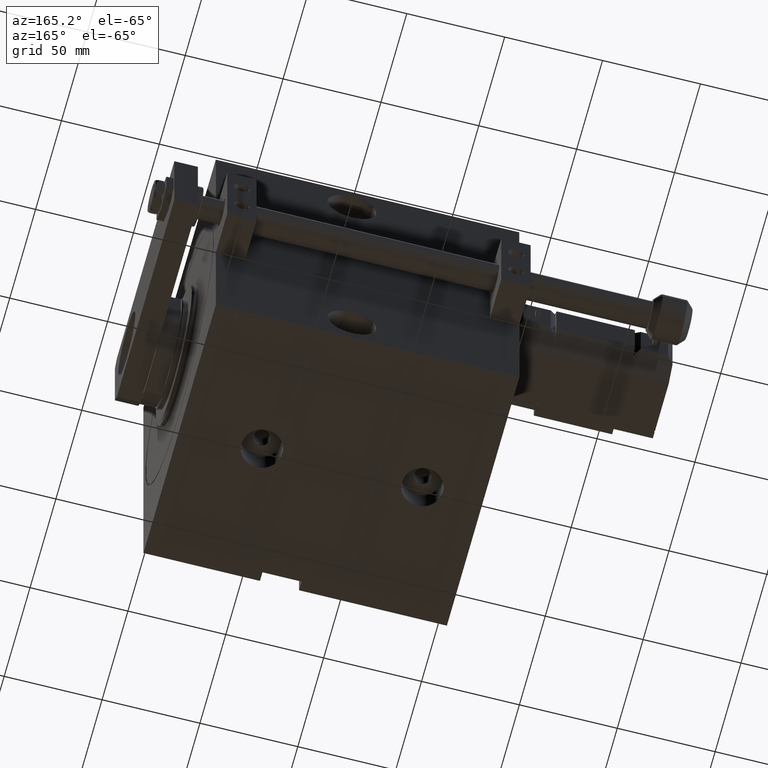
[diagram: clean part render]
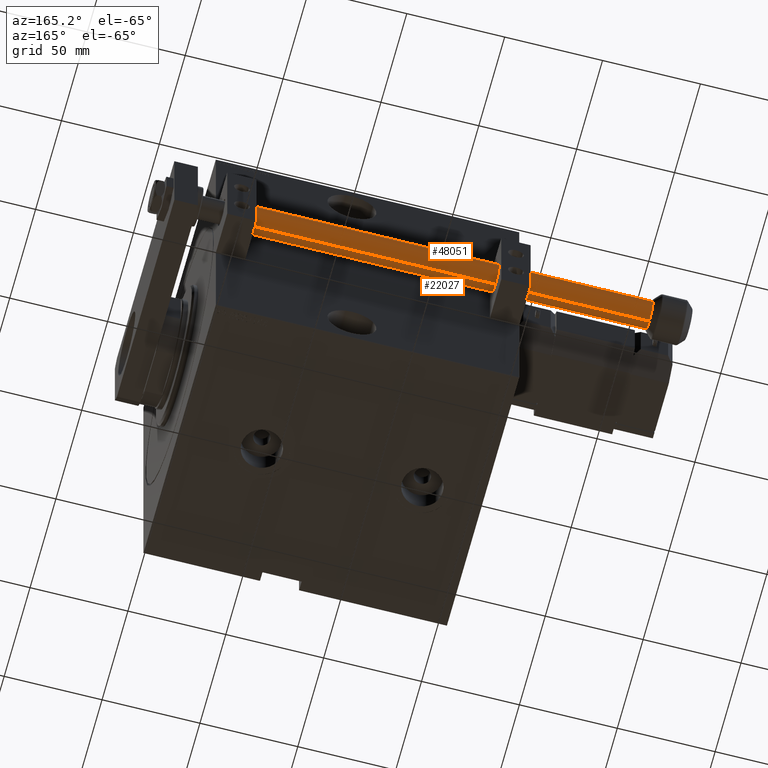
[diagram: same view with one multi-face feature highlighted, each face labeled with its STEP entity id]
A machine part, auxiliary view. The highlighted faces form ONE feature: a constant-radius fillet chain: 2 tangent blend faces with common blend radius 7 mm. The faces share edges in the B-rep.
Their STEP definitions:
[1] entity #48051 (Cylinder):
#203 = EDGE_CURVE ( 'NONE', #5867, #39175, #46766, .T. ) ;
#381 = CARTESIAN_POINT ( 'NONE',  ( 0.000000000000000000, 0.000000000000000000, 235.0000000000000000 ) ) ;
#866 = CIRCLE ( 'NONE', #7303, 7.000000000000000000 ) ;
#1077 = CARTESIAN_POINT ( 'NONE',  ( -7.000000000000000000, 0.000000000000000000, 235.0000000000000000 ) ) ;
#1748 = DIRECTION ( 'NONE',  ( 1.000000000000000000, 0.000000000000000000, 0.000000000000000000 ) ) ;
#5531 = CARTESIAN_POINT ( 'NONE',  ( 0.000000000000000000, 0.000000000000000000, 234.0000000000001421 ) ) ;
#5867 = VERTEX_POINT ( 'NONE', #15515 ) ;
#6042 = VECTOR ( 'NONE', #12743, 1000.000000000000000 ) ;
#6920 = ORIENTED_EDGE ( 'NONE', *, *, #31447, .T. ) ;
#7068 = CARTESIAN_POINT ( 'NONE',  ( -7.000000000000000000, 0.000000000000000000, 2.000000000000057288 ) ) ;
#7303 = AXIS2_PLACEMENT_3D ( 'NONE', #5531, #36351, #1748 ) ;
#8732 = ORIENTED_EDGE ( 'NONE', *, *, #38499, .T. ) ;
#9069 = EDGE_LOOP ( 'NONE', ( #24436, #12231, #8732, #19312, #13998, #6920 ) ) ;
#12231 = ORIENTED_EDGE ( 'NONE', *, *, #27559, .T. ) ;
#12743 = DIRECTION ( 'NONE',  ( -0.000000000000000000, -0.000000000000000000, -1.000000000000000000 ) ) ;
#12935 = AXIS2_PLACEMENT_3D ( 'NONE', #21439, #35682, #35416 ) ;
#13238 = EDGE_CURVE ( 'NONE', #34074, #37008, #866, .T. ) ;
#13998 = ORIENTED_EDGE ( 'NONE', *, *, #13238, .T. ) ;
#15515 = CARTESIAN_POINT ( 'NONE',  ( 0.4999999999999882871, 6.982120021884472116, 234.0000000000001421 ) ) ;
#16023 = FACE_OUTER_BOUND ( 'NONE', #9069, .T. ) ;
#16106 = AXIS2_PLACEMENT_3D ( 'NONE', #22071, #18290, #48371 ) ;
#18290 = DIRECTION ( 'NONE',  ( 0.000000000000000000, 0.000000000000000000, -1.000000000000000000 ) ) ;
#19312 = ORIENTED_EDGE ( 'NONE', *, *, #38505, .F. ) ;
#19387 = VECTOR ( 'NONE', #28791, 1000.000000000000000 ) ;
#19613 = AXIS2_PLACEMENT_3D ( 'NONE', #381, #46860, #34235 ) ;
#20080 = CARTESIAN_POINT ( 'NONE',  ( 7.000000000000000000, 8.572527594031471218E-16, 235.0000000000000000 ) ) ;
#20575 = AXIS2_PLACEMENT_3D ( 'NONE', #38080, #22916, #38326 ) ;
#21439 = CARTESIAN_POINT ( 'NONE',  ( 0.000000000000000000, 0.000000000000000000, 2.000000000000057288 ) ) ;
#22071 = CARTESIAN_POINT ( 'NONE',  ( 0.000000000000000000, 0.000000000000000000, 234.0000000000001421 ) ) ;
#22916 = DIRECTION ( 'NONE',  ( 0.000000000000000000, 0.000000000000000000, -1.000000000000000000 ) ) ;
#23436 = CIRCLE ( 'NONE', #12935, 7.000000000000000000 ) ;
#24436 = ORIENTED_EDGE ( 'NONE', *, *, #203, .T. ) ;
#24614 = CIRCLE ( 'NONE', #20575, 7.000000000000000000 ) ;
#27559 = EDGE_CURVE ( 'NONE', #39175, #43358, #47121, .T. ) ;
#28791 = DIRECTION ( 'NONE',  ( -0.000000000000000000, -0.000000000000000000, -1.000000000000000000 ) ) ;
#31446 = CYLINDRICAL_SURFACE ( 'NONE', #19613, 7.000000000000000000 ) ;
#31447 = EDGE_CURVE ( 'NONE', #37008, #5867, #24614, .T. ) ;
#31827 = CARTESIAN_POINT ( 'NONE',  ( -0.4999999999999992784, 6.982120021884637318, 234.0000000000000000 ) ) ;
#31960 = CARTESIAN_POINT ( 'NONE',  ( 7.000000000000000000, 8.572527594031471218E-16, 234.0000000000001421 ) ) ;
#32332 = VERTEX_POINT ( 'NONE', #7068 ) ;
#34074 = VERTEX_POINT ( 'NONE', #38231 ) ;
#34235 = DIRECTION ( 'NONE',  ( -1.000000000000000000, 0.000000000000000000, 0.000000000000000000 ) ) ;
#35416 = DIRECTION ( 'NONE',  ( 1.000000000000000000, 0.000000000000000000, 0.000000000000000000 ) ) ;
#35682 = DIRECTION ( 'NONE',  ( -0.000000000000000000, -0.000000000000000000, 1.000000000000000000 ) ) ;
#36351 = DIRECTION ( 'NONE',  ( 0.000000000000000000, 0.000000000000000000, -1.000000000000000000 ) ) ;
#37008 = VERTEX_POINT ( 'NONE', #31827 ) ;
#38080 = CARTESIAN_POINT ( 'NONE',  ( 0.000000000000000000, 0.000000000000000000, 234.0000000000001421 ) ) ;
#38231 = CARTESIAN_POINT ( 'NONE',  ( -7.000000000000000000, 0.000000000000000000, 234.0000000000001421 ) ) ;
#38326 = DIRECTION ( 'NONE',  ( 1.000000000000000000, 0.000000000000000000, 0.000000000000000000 ) ) ;
#38499 = EDGE_CURVE ( 'NONE', #43358, #32332, #23436, .T. ) ;
#38505 = EDGE_CURVE ( 'NONE', #34074, #32332, #47986, .T. ) ;
#39175 = VERTEX_POINT ( 'NONE', #31960 ) ;
#43358 = VERTEX_POINT ( 'NONE', #43474 ) ;
#43474 = CARTESIAN_POINT ( 'NONE',  ( 7.000000000000000000, 8.572527594031471218E-16, 2.000000000000057288 ) ) ;
#46766 = CIRCLE ( 'NONE', #16106, 7.000000000000000000 ) ;
#46860 = DIRECTION ( 'NONE',  ( -0.000000000000000000, -0.000000000000000000, -1.000000000000000000 ) ) ;
#47121 = LINE ( 'NONE', #20080, #6042 ) ;
#47986 = LINE ( 'NONE', #1077, #19387 ) ;
#48051 = ADVANCED_FACE ( 'NONE', ( #16023 ), #31446, .T. ) ;
#48371 = DIRECTION ( 'NONE',  ( 1.000000000000000000, -8.881784197001252323E-16, 0.000000000000000000 ) ) ;
[2] entity #22027 (Cylinder):
#481 = EDGE_CURVE ( 'NONE', #16633, #34074, #14504, .T. ) ;
#941 = EDGE_CURVE ( 'NONE', #32332, #43358, #18505, .T. ) ;
#1077 = CARTESIAN_POINT ( 'NONE',  ( -7.000000000000000000, 0.000000000000000000, 235.0000000000000000 ) ) ;
#2212 = DIRECTION ( 'NONE',  ( -1.000000000000000000, 0.000000000000000000, 0.000000000000000000 ) ) ;
#2610 = AXIS2_PLACEMENT_3D ( 'NONE', #28990, #36821, #2212 ) ;
#2842 = ORIENTED_EDGE ( 'NONE', *, *, #30470, .T. ) ;
#6042 = VECTOR ( 'NONE', #12743, 1000.000000000000000 ) ;
#6431 = AXIS2_PLACEMENT_3D ( 'NONE', #40966, #36445, #36685 ) ;
#7068 = CARTESIAN_POINT ( 'NONE',  ( -7.000000000000000000, 0.000000000000000000, 2.000000000000057288 ) ) ;
#9309 = CIRCLE ( 'NONE', #33525, 7.000000000000000000 ) ;
#9997 = DIRECTION ( 'NONE',  ( 1.000000000000000000, 0.000000000000000000, 0.000000000000000000 ) ) ;
#12743 = DIRECTION ( 'NONE',  ( -0.000000000000000000, -0.000000000000000000, -1.000000000000000000 ) ) ;
#13034 = DIRECTION ( 'NONE',  ( 0.000000000000000000, 0.000000000000000000, -1.000000000000000000 ) ) ;
#13157 = ORIENTED_EDGE ( 'NONE', *, *, #481, .T. ) ;
#14504 = CIRCLE ( 'NONE', #6431, 7.000000000000000000 ) ;
#14661 = ORIENTED_EDGE ( 'NONE', *, *, #941, .T. ) ;
#15819 = CIRCLE ( 'NONE', #28744, 7.000000000000000000 ) ;
#16383 = ORIENTED_EDGE ( 'NONE', *, *, #27559, .F. ) ;
#16633 = VERTEX_POINT ( 'NONE', #42728 ) ;
#17373 = FACE_OUTER_BOUND ( 'NONE', #41655, .T. ) ;
#18505 = CIRCLE ( 'NONE', #22591, 7.000000000000000000 ) ;
#18898 = ORIENTED_EDGE ( 'NONE', *, *, #38505, .T. ) ;
#19387 = VECTOR ( 'NONE', #28791, 1000.000000000000000 ) ;
#20080 = CARTESIAN_POINT ( 'NONE',  ( 7.000000000000000000, 8.572527594031471218E-16, 235.0000000000000000 ) ) ;
#21409 = CYLINDRICAL_SURFACE ( 'NONE', #2610, 7.000000000000000000 ) ;
#21529 = VERTEX_POINT ( 'NONE', #45318 ) ;
#22027 = ADVANCED_FACE ( 'NONE', ( #17373 ), #21409, .T. ) ;
#22591 = AXIS2_PLACEMENT_3D ( 'NONE', #28457, #43866, #28697 ) ;
#24446 = CARTESIAN_POINT ( 'NONE',  ( 0.000000000000000000, 0.000000000000000000, 234.0000000000001421 ) ) ;
#24696 = DIRECTION ( 'NONE',  ( 1.000000000000000000, 0.000000000000000000, 0.000000000000000000 ) ) ;
#27559 = EDGE_CURVE ( 'NONE', #39175, #43358, #47121, .T. ) ;
#28218 = EDGE_CURVE ( 'NONE', #39175, #21529, #9309, .T. ) ;
#28457 = CARTESIAN_POINT ( 'NONE',  ( 0.000000000000000000, 0.000000000000000000, 2.000000000000057288 ) ) ;
#28697 = DIRECTION ( 'NONE',  ( 1.000000000000000000, 0.000000000000000000, 0.000000000000000000 ) ) ;
#28744 = AXIS2_PLACEMENT_3D ( 'NONE', #36270, #13034, #9997 ) ;
#28791 = DIRECTION ( 'NONE',  ( -0.000000000000000000, -0.000000000000000000, -1.000000000000000000 ) ) ;
#28990 = CARTESIAN_POINT ( 'NONE',  ( 0.000000000000000000, 0.000000000000000000, 235.0000000000000000 ) ) ;
#30470 = EDGE_CURVE ( 'NONE', #21529, #16633, #15819, .T. ) ;
#31960 = CARTESIAN_POINT ( 'NONE',  ( 7.000000000000000000, 8.572527594031471218E-16, 234.0000000000001421 ) ) ;
#32332 = VERTEX_POINT ( 'NONE', #7068 ) ;
#33525 = AXIS2_PLACEMENT_3D ( 'NONE', #24446, #39855, #24696 ) ;
#34074 = VERTEX_POINT ( 'NONE', #38231 ) ;
#36270 = CARTESIAN_POINT ( 'NONE',  ( 0.000000000000000000, 0.000000000000000000, 234.0000000000001421 ) ) ;
#36445 = DIRECTION ( 'NONE',  ( 0.000000000000000000, 0.000000000000000000, -1.000000000000000000 ) ) ;
#36685 = DIRECTION ( 'NONE',  ( 1.000000000000000000, 0.000000000000000000, 0.000000000000000000 ) ) ;
#36821 = DIRECTION ( 'NONE',  ( -0.000000000000000000, -0.000000000000000000, -1.000000000000000000 ) ) ;
#38231 = CARTESIAN_POINT ( 'NONE',  ( -7.000000000000000000, 0.000000000000000000, 234.0000000000001421 ) ) ;
#38505 = EDGE_CURVE ( 'NONE', #34074, #32332, #47986, .T. ) ;
#39175 = VERTEX_POINT ( 'NONE', #31960 ) ;
#39855 = DIRECTION ( 'NONE',  ( 0.000000000000000000, 0.000000000000000000, -1.000000000000000000 ) ) ;
#40966 = CARTESIAN_POINT ( 'NONE',  ( 0.000000000000000000, 0.000000000000000000, 234.0000000000001421 ) ) ;
#41655 = EDGE_LOOP ( 'NONE', ( #16383, #49193, #2842, #13157, #18898, #14661 ) ) ;
#42728 = CARTESIAN_POINT ( 'NONE',  ( -0.4999999999999975020, -6.982120021884637318, 234.0000000000000000 ) ) ;
#43358 = VERTEX_POINT ( 'NONE', #43474 ) ;
#43474 = CARTESIAN_POINT ( 'NONE',  ( 7.000000000000000000, 8.572527594031471218E-16, 2.000000000000057288 ) ) ;
#43866 = DIRECTION ( 'NONE',  ( -0.000000000000000000, -0.000000000000000000, 1.000000000000000000 ) ) ;
#45318 = CARTESIAN_POINT ( 'NONE',  ( 0.5000000000000001110, -6.982120021884637318, 234.0000000000000000 ) ) ;
#47121 = LINE ( 'NONE', #20080, #6042 ) ;
#47986 = LINE ( 'NONE', #1077, #19387 ) ;
#49193 = ORIENTED_EDGE ( 'NONE', *, *, #28218, .T. ) ;